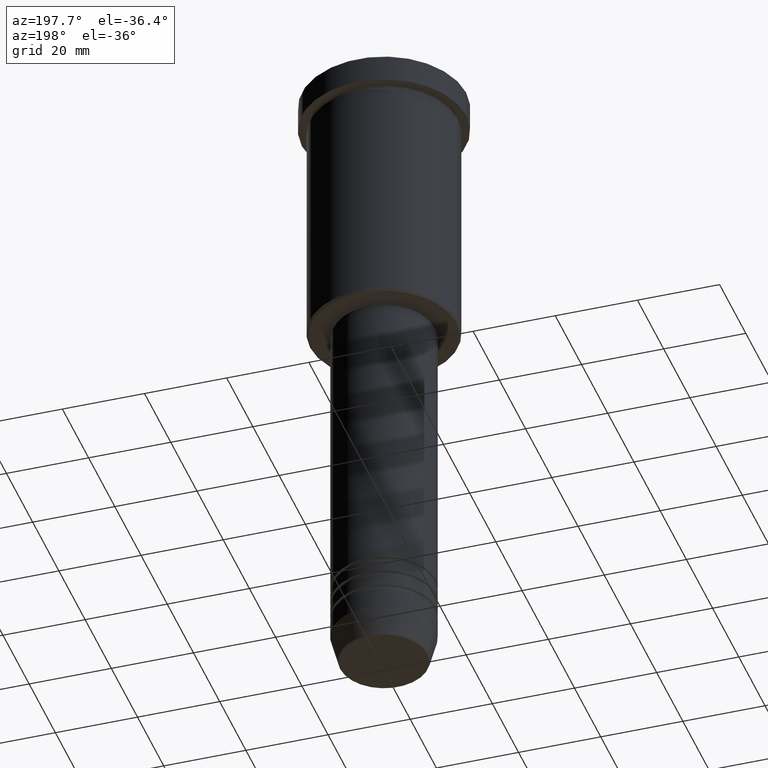
[diagram: clean part render]
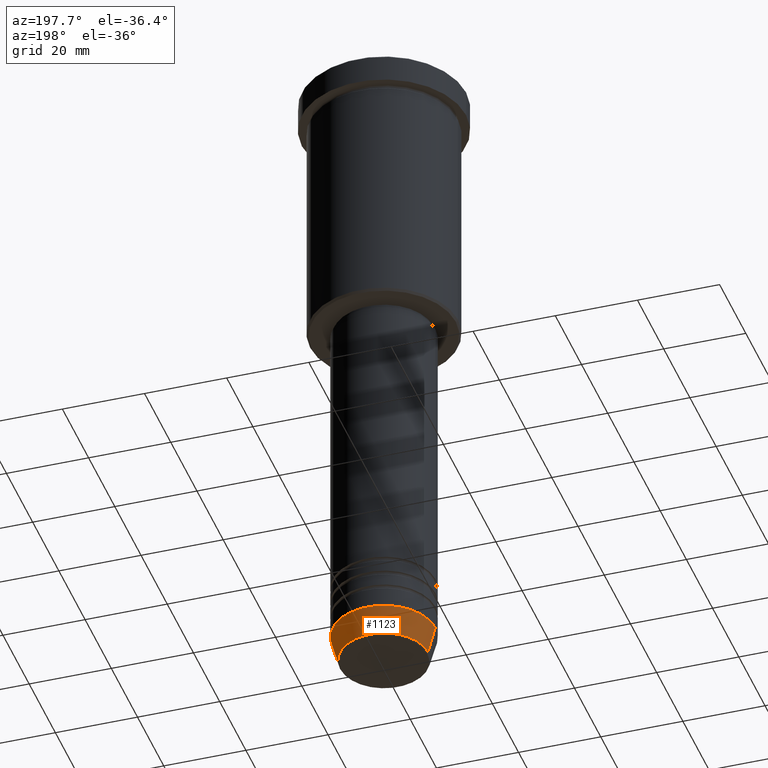
[diagram: same view with one face highlighted and labeled with its STEP entity id]
A machine part, auxiliary view. The second image highlights one B-rep face of the part: STEP entity #1123.
In plain terms, the highlighted conical surface has half-angle 15 deg.
Its self-contained STEP definition (entity closure, byte-faithful):
#1 = ORIENTED_EDGE ( 'NONE', *, *, #1104, .T. ) ;
#40 = CARTESIAN_POINT ( 'NONE',  ( 0.000000000000000000, 0.000000000000000000, -153.0000000000000000 ) ) ;
#64 = AXIS2_PLACEMENT_3D ( 'NONE', #40, #1122, #776 ) ;
#90 = VERTEX_POINT ( 'NONE', #740 ) ;
#241 = VECTOR ( 'NONE', #400, 1000.000000000000000 ) ;
#352 = VERTEX_POINT ( 'NONE', #685 ) ;
#370 = VERTEX_POINT ( 'NONE', #448 ) ;
#400 = DIRECTION ( 'NONE',  ( -0.2588190451025203509, 3.169619151431760011E-17, 0.9659258262890684232 ) ) ;
#415 = CIRCLE ( 'NONE', #64, 12.50000000000000000 ) ;
#421 = ORIENTED_EDGE ( 'NONE', *, *, #648, .T. ) ;
#448 = CARTESIAN_POINT ( 'NONE',  ( 10.72365507213719660, 0.000000000000000000, -159.6294095225512706 ) ) ;
#449 = DIRECTION ( 'NONE',  ( 0.2588190451025203509, 0.000000000000000000, 0.9659258262890684232 ) ) ;
#469 = CARTESIAN_POINT ( 'NONE',  ( -12.50000000000000000, 1.530808498934191521E-15, -153.0000000000000000 ) ) ;
#478 = FACE_OUTER_BOUND ( 'NONE', #1005, .T. ) ;
#489 = CONICAL_SURFACE ( 'NONE', #965, 12.50000000000000000, 0.2617993877991490193 ) ;
#574 = VECTOR ( 'NONE', #449, 1000.000000000000000 ) ;
#592 = CARTESIAN_POINT ( 'NONE',  ( 0.000000000000000000, 0.000000000000000000, -159.6294095225512706 ) ) ;
#648 = EDGE_CURVE ( 'NONE', #370, #90, #811, .T. ) ;
#666 = CARTESIAN_POINT ( 'NONE',  ( -12.50000000000000000, 1.530808498934191521E-15, -153.0000000000000000 ) ) ;
#676 = LINE ( 'NONE', #666, #241 ) ;
#679 = AXIS2_PLACEMENT_3D ( 'NONE', #592, #681, #1127 ) ;
#681 = DIRECTION ( 'NONE',  ( -0.000000000000000000, -0.000000000000000000, 1.000000000000000000 ) ) ;
#685 = CARTESIAN_POINT ( 'NONE',  ( 12.50000000000000000, 0.000000000000000000, -153.0000000000000000 ) ) ;
#740 = CARTESIAN_POINT ( 'NONE',  ( -10.72365507213719660, 1.422038742429750713E-15, -159.6294095225512706 ) ) ;
#776 = DIRECTION ( 'NONE',  ( 1.000000000000000000, 0.000000000000000000, 0.000000000000000000 ) ) ;
#803 = ORIENTED_EDGE ( 'NONE', *, *, #915, .F. ) ;
#811 = CIRCLE ( 'NONE', #679, 10.72365507213719660 ) ;
#828 = VERTEX_POINT ( 'NONE', #469 ) ;
#890 = EDGE_CURVE ( 'NONE', #352, #828, #415, .T. ) ;
#915 = EDGE_CURVE ( 'NONE', #370, #352, #1001, .T. ) ;
#917 = DIRECTION ( 'NONE',  ( -0.000000000000000000, -0.000000000000000000, 1.000000000000000000 ) ) ;
#965 = AXIS2_PLACEMENT_3D ( 'NONE', #1120, #917, #1008 ) ;
#969 = ORIENTED_EDGE ( 'NONE', *, *, #890, .F. ) ;
#1001 = LINE ( 'NONE', #1096, #574 ) ;
#1005 = EDGE_LOOP ( 'NONE', ( #421, #1, #969, #803 ) ) ;
#1008 = DIRECTION ( 'NONE',  ( 1.000000000000000000, 0.000000000000000000, 0.000000000000000000 ) ) ;
#1096 = CARTESIAN_POINT ( 'NONE',  ( 12.50000000000000000, 0.000000000000000000, -153.0000000000000000 ) ) ;
#1104 = EDGE_CURVE ( 'NONE', #90, #828, #676, .T. ) ;
#1120 = CARTESIAN_POINT ( 'NONE',  ( 0.000000000000000000, 0.000000000000000000, -153.0000000000000000 ) ) ;
#1122 = DIRECTION ( 'NONE',  ( -0.000000000000000000, -0.000000000000000000, 1.000000000000000000 ) ) ;
#1123 = ADVANCED_FACE ( 'NONE', ( #478 ), #489, .T. ) ;
#1127 = DIRECTION ( 'NONE',  ( 1.000000000000000000, 0.000000000000000000, 0.000000000000000000 ) ) ;